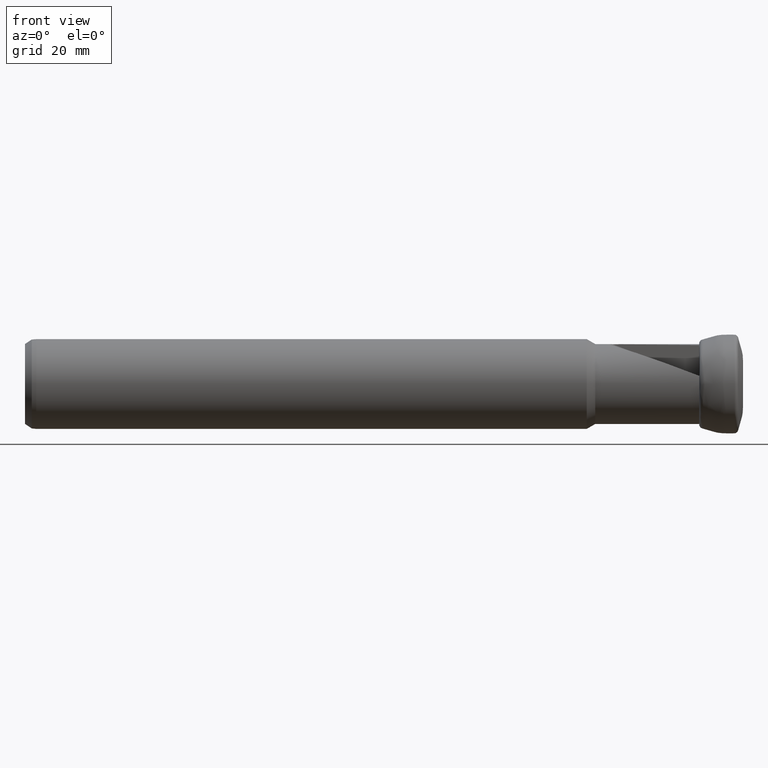
[diagram: clean part render]
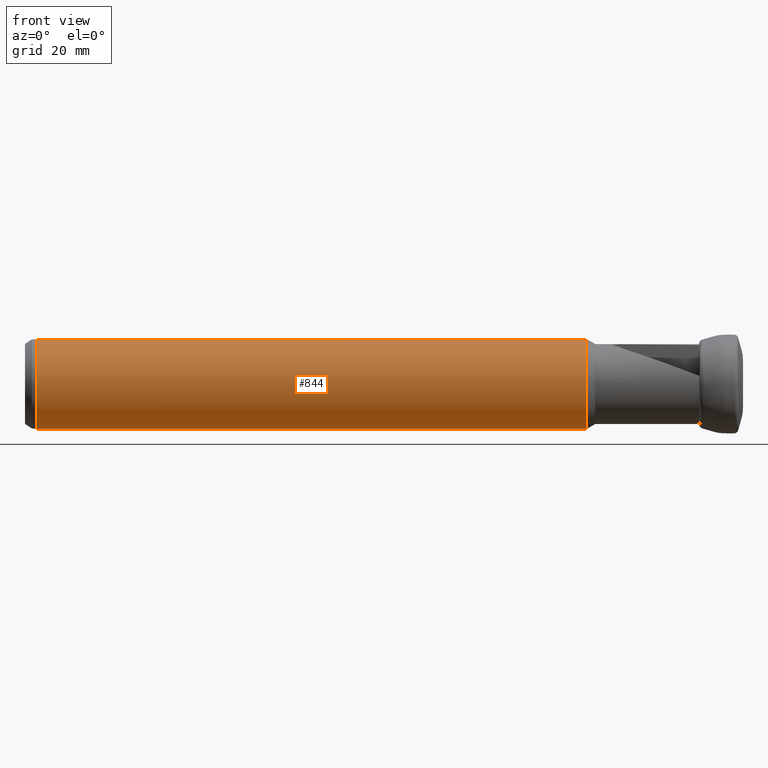
[diagram: same view with one face highlighted and labeled with its STEP entity id]
A machine part, front view. The second image highlights one B-rep face of the part: STEP entity #844.
In plain terms, the highlighted cylindrical surface (bore or boss wall) has radius 10 mm, axis along (-1, -0, -0).
Its self-contained STEP definition (entity closure, byte-faithful):
#112 = CYLINDRICAL_SURFACE ( 'NONE', #1257, 10.00000000000000000 ) ;
#153 = DIRECTION ( 'NONE',  ( -1.000000000000000000, 0.0000000000000000000, 0.0000000000000000000 ) ) ;
#221 = EDGE_CURVE ( 'NONE', #609, #609, #1504, .T. ) ;
#249 = AXIS2_PLACEMENT_3D ( 'NONE', #1196, #153, #1375 ) ;
#398 = AXIS2_PLACEMENT_3D ( 'NONE', #1990, #958, #2163 ) ;
#418 = FACE_OUTER_BOUND ( 'NONE', #700, .T. ) ;
#609 = VERTEX_POINT ( 'NONE', #1633 ) ;
#700 = EDGE_LOOP ( 'NONE', ( #1475 ) ) ;
#725 = CARTESIAN_POINT ( 'NONE',  ( -33.24100000000004900, 0.0000000000000000000, 0.0000000000000000000 ) ) ;
#774 = EDGE_LOOP ( 'NONE', ( #1343 ) ) ;
#844 = ADVANCED_FACE ( 'NONE', ( #1954, #418 ), #112, .T. ) ;
#887 = CIRCLE ( 'NONE', #398, 10.00000000000000000 ) ;
#958 = DIRECTION ( 'NONE',  ( 1.000000000000000000, -0.0000000000000000000, -0.0000000000000000000 ) ) ;
#1152 = EDGE_CURVE ( 'NONE', #2095, #2095, #887, .T. ) ;
#1196 = CARTESIAN_POINT ( 'NONE',  ( -156.7409999999998100, 0.0000000000000000000, 0.0000000000000000000 ) ) ;
#1257 = AXIS2_PLACEMENT_3D ( 'NONE', #725, #1926, #1766 ) ;
#1343 = ORIENTED_EDGE ( 'NONE', *, *, #1152, .F. ) ;
#1375 = DIRECTION ( 'NONE',  ( 0.0000000000000000000, 0.0000000000000000000, -1.000000000000000000 ) ) ;
#1475 = ORIENTED_EDGE ( 'NONE', *, *, #221, .F. ) ;
#1504 = CIRCLE ( 'NONE', #249, 10.00000000000000000 ) ;
#1633 = CARTESIAN_POINT ( 'NONE',  ( -156.7409999999998100, 0.0000000000000000000, -10.00000000000000000 ) ) ;
#1766 = DIRECTION ( 'NONE',  ( 0.0000000000000000000, 0.0000000000000000000, 1.000000000000000000 ) ) ;
#1926 = DIRECTION ( 'NONE',  ( -1.000000000000000000, -0.0000000000000000000, -0.0000000000000000000 ) ) ;
#1954 = FACE_OUTER_BOUND ( 'NONE', #774, .T. ) ;
#1990 = CARTESIAN_POINT ( 'NONE',  ( -34.06779491924314800, 0.0000000000000000000, 0.0000000000000000000 ) ) ;
#2095 = VERTEX_POINT ( 'NONE', #2145 ) ;
#2145 = CARTESIAN_POINT ( 'NONE',  ( -34.06779491924314800, 0.0000000000000000000, 10.00000000000000000 ) ) ;
#2163 = DIRECTION ( 'NONE',  ( 0.0000000000000000000, 0.0000000000000000000, 1.000000000000000000 ) ) ;